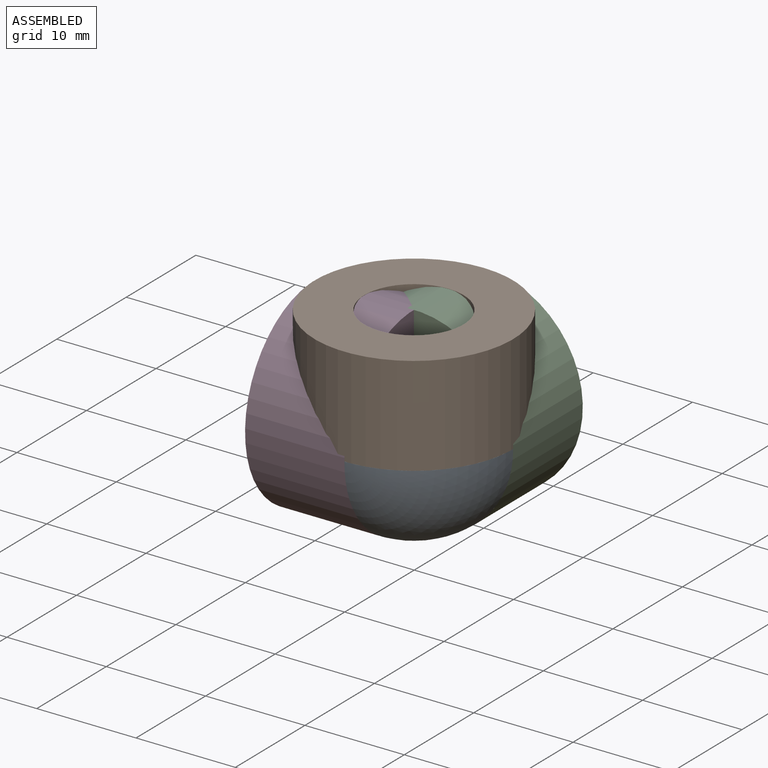
[diagram: assembled view]
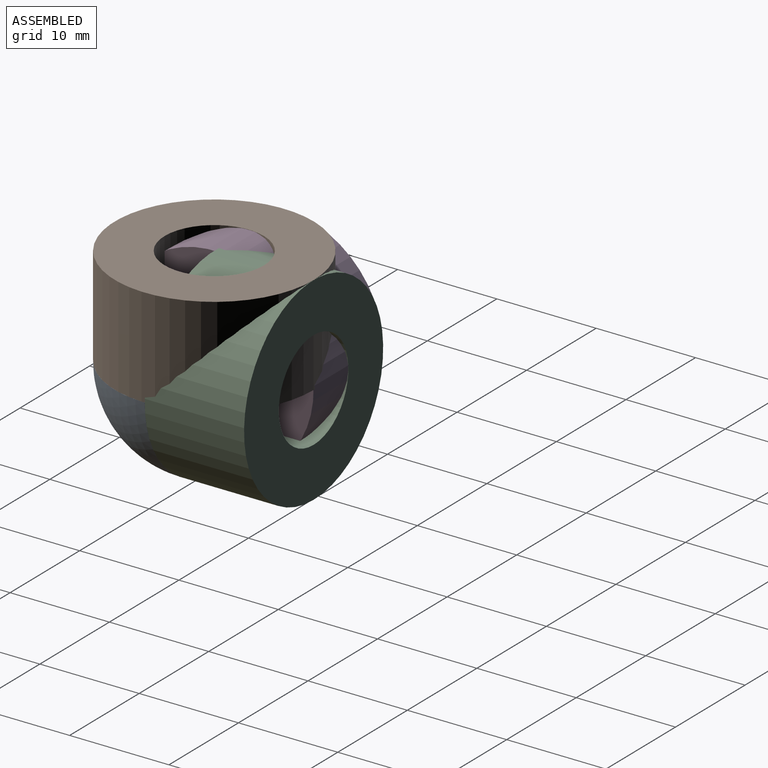
[diagram: assembled view, second angle]
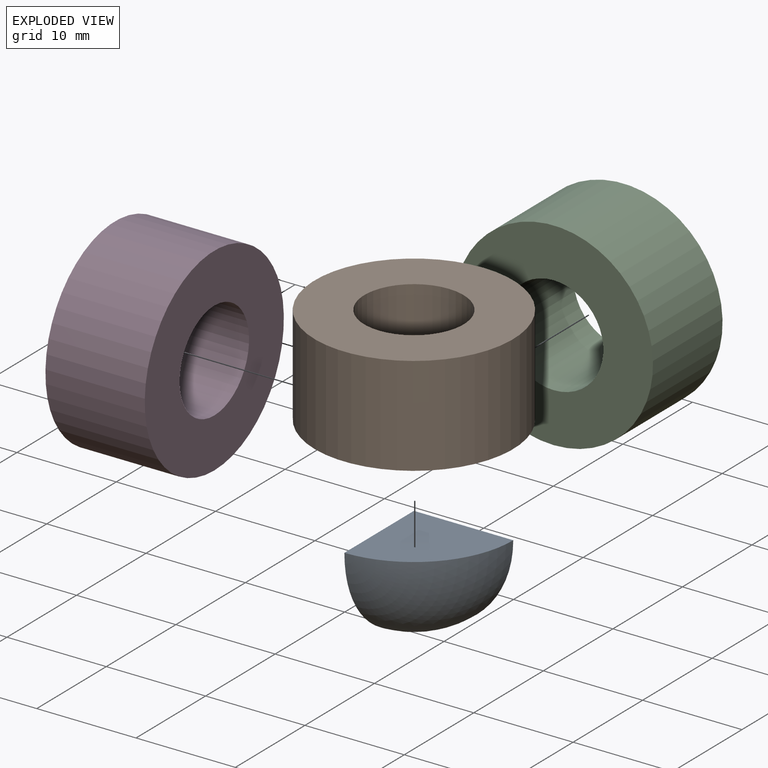
[diagram: exploded view]
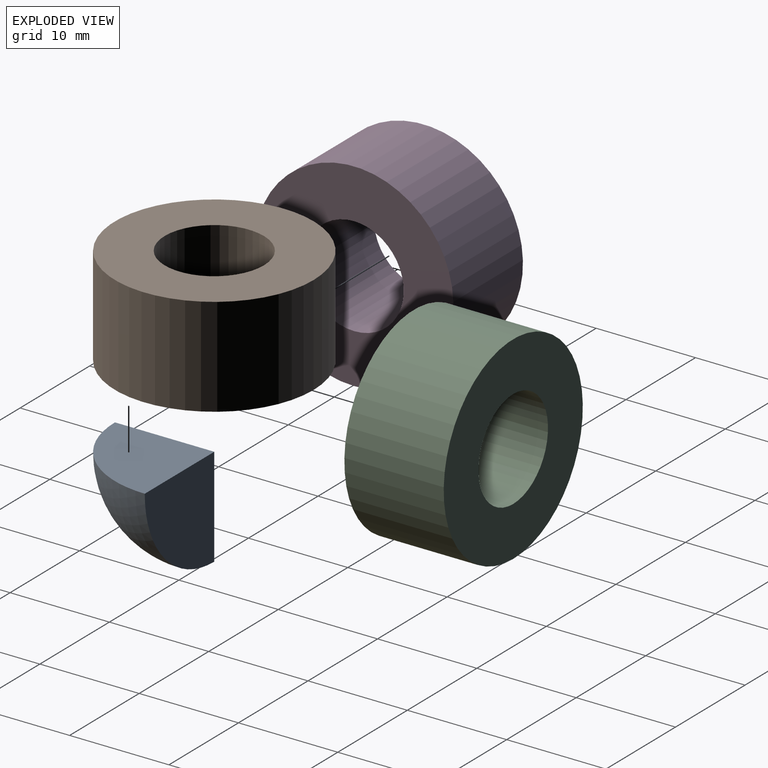
[diagram: exploded view, second angle]
ASSEMBLY  parts=4 mates=6
PART A: 4 faces, bbox 10x10x10 mm
  f0: sphere r=10mm, area 157.1mm2, adj f1,f2,f3
  f1: plane 10x10mm, normal (0,0,-1), area 78.5mm2, adj f0,f2,f3
  f2: plane 10x10mm, normal (-1,0,0), area 78.5mm2, adj f0,f1,f3
  f3: plane 10x10mm, normal (0,1,0), area 78.5mm2, adj f0,f1,f2
PART B: 4 faces, bbox 20x10x20 mm
  f0: cylinder r=5mm len=10mm, axis (0,1,0), area 314.2mm2, adj f2,f3
  f1: cylinder r=10mm len=20mm, axis (0,1,0), area 628.3mm2, adj f2,f3
  f2: plane 20x20mm, normal (0,-1,0), area 235.6mm2, adj f0,f1
  f3: plane 20x20mm, normal (0,1,0), area 235.6mm2, adj f0,f1
PART C: same geometry as B
PART D: same geometry as B
PLACE A rot(axis=(1,0,0),90deg) t=(-23.71,40.97,-16.32)mm
PLACE B rot(axis=(1,0,0),90deg) t=(-23.71,40.97,-6.32)mm
PLACE C t=(-23.71,50.97,-16.32)mm
PLACE D rot(axis=(0,0,-1),90deg) t=(-23.71,40.97,-16.32)mm
MATE planar A.f1 <-> C.f1  axis (0,1,0) through (-19.46,40.97,-20.57)mm
MATE planar A.f2 <-> D.f1  axis (-1,0,0) through (-23.71,36.73,-20.57)mm
MATE ball C.f1 <-> A.f1  axis (0,-1,0) through (-23.71,40.97,-16.32)mm
MATE planar A.f3 <-> B.f1  axis (0,0,1) through (-19.46,36.73,-16.32)mm
MATE ball A.f1 <-> D.f1  axis (0,-1,0) through (-23.71,40.97,-16.32)mm
MATE ball A.f3 <-> B.f1  axis (0,0,1) through (-23.71,40.97,-16.32)mm
